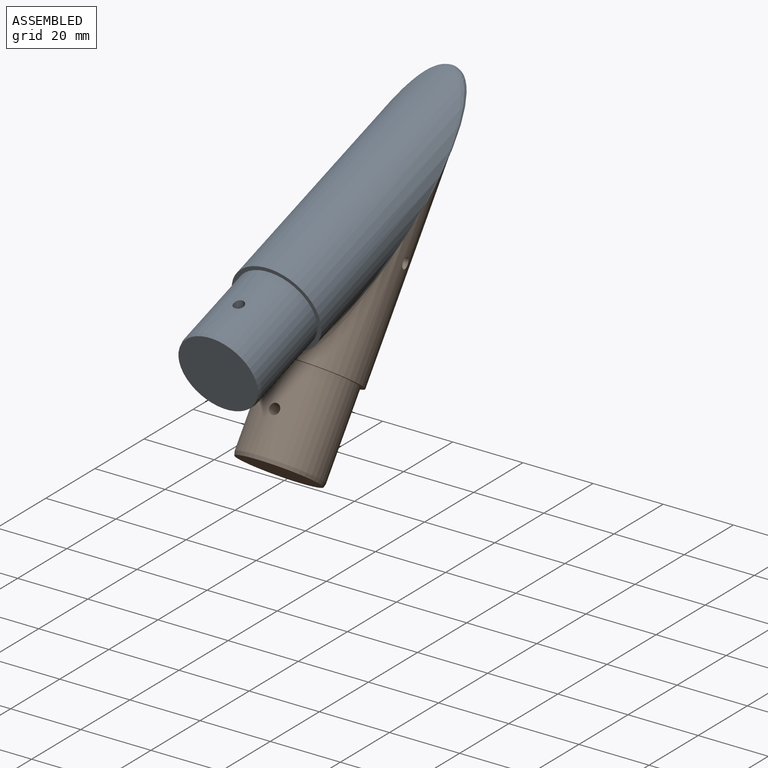
[diagram: assembled view]
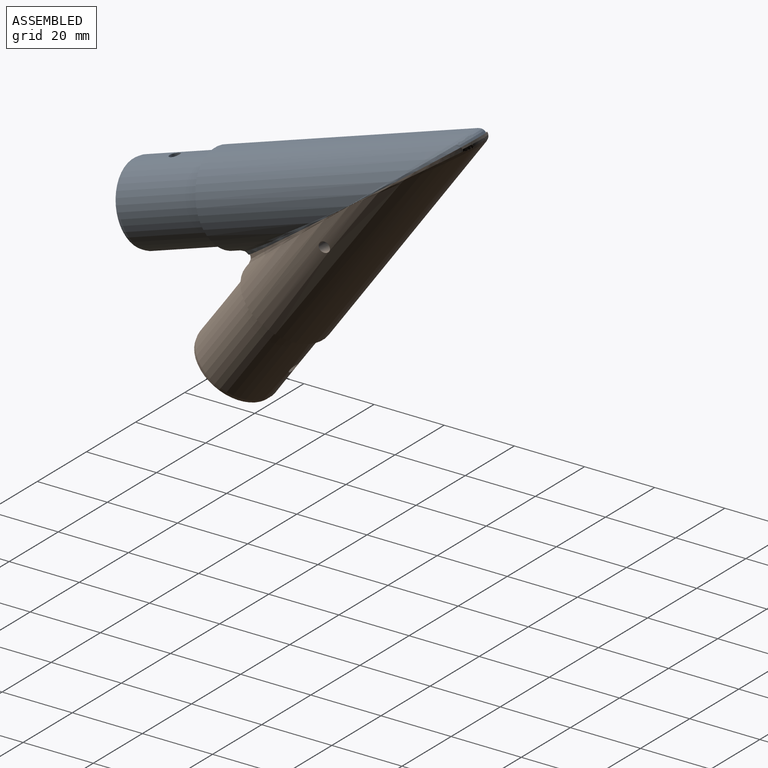
[diagram: assembled view, second angle]
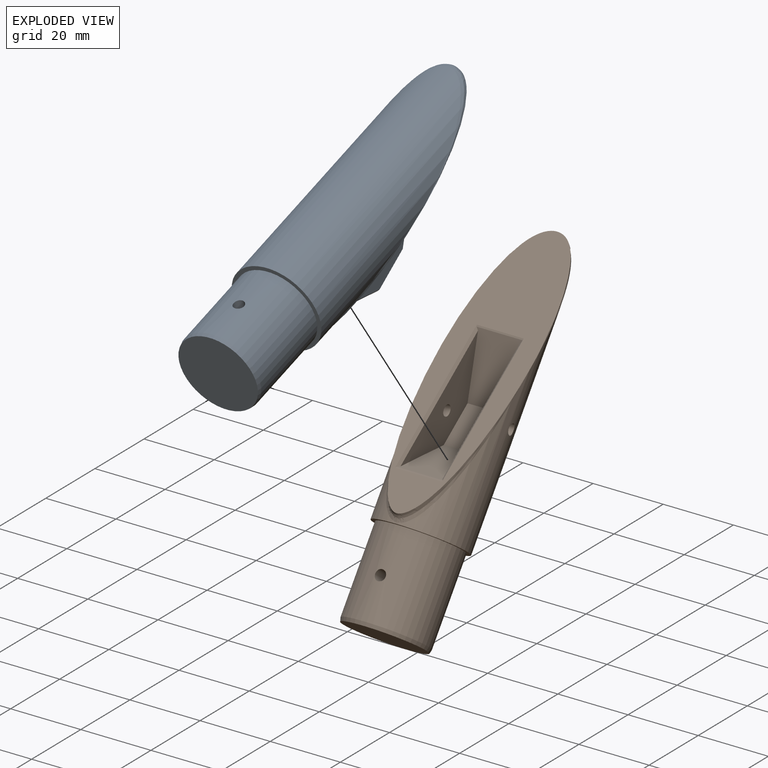
[diagram: exploded view]
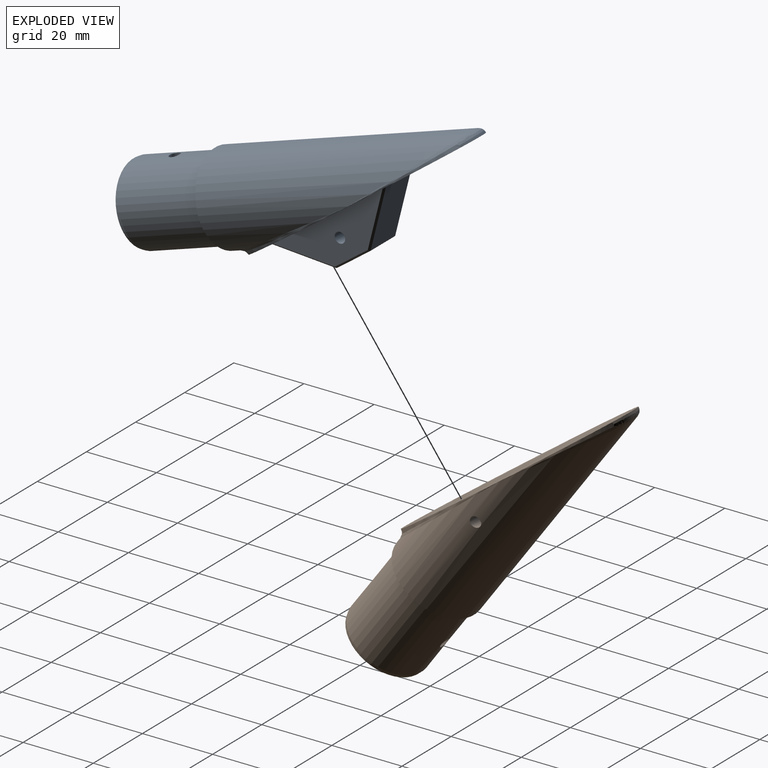
[diagram: exploded view, second angle]
ASSEMBLY  parts=2 mates=3
PART A: 27 faces, bbox 42.8x47.6x126.3 mm
  f0: bspline ~38.47x25mm, area 0mm2, adj f2,f6
  f1: bspline ~44.63x25mm, area 110.2mm2, adj f2,f6
  f2: cylinder r=12.5mm len=77.43mm, axis (0,0,-1), area 3226.5mm2, adj f0,f1,f5
  f3: cylinder r=11.35mm len=24mm, axis (0,0,-1), area 1697.3mm2, adj f5,f25,f26
  f4: plane 22.16x22.16mm, normal (0,0,-1), area 385.8mm2, adj f26
  f5: plane 25x25mm, normal (0,0,-1), area 86.2mm2, adj f2,f3
  f6: plane 94.74x42.79mm, normal (0,0.95,0.31), area 1138.6mm2, adj f0,f1,f7,f8,f10,f11,f12,f13
  f7: plane 15.68x10mm, normal (0,0.53,0.85), area 184.9mm2, adj f6,f18,f19,f23
  f8: plane 17.14x10mm, normal (0,0.93,-0.37), area 184.9mm2, adj f6,f12,f13,f14
  f9: plane 11.07x10mm, normal (0,0.95,0.31), area 116.4mm2, adj f14,f17,f20,f23
  f10: plane 37.14x18.77mm, normal (1,0,0), area 284.4mm2, adj f6,f12,f17,f18,f24
  f11: plane 37.14x18.77mm, normal (-1,0,0), area 284.4mm2, adj f6,f13,f19,f20,f24
  f12: plane 17.33x7.17mm, normal (0.71,0.66,-0.26), area 12.9mm2, adj f6,f8,f10,f15
  f13: plane 17.33x7.17mm, normal (-0.71,0.66,-0.26), area 12.9mm2, adj f6,f8,f11,f16
  f14: plane 10x0.34mm, normal (0,1,-0.03), area 3.4mm2, adj f8,f9,f15,f16
  f15: plane 0.5x0.48mm, normal (0.68,0.73,-0.03), area 0.1mm2, adj f12,f14,f17
  f16: plane 0.5x0.48mm, normal (-0.68,0.73,-0.03), area 0.1mm2, adj f13,f14,f20
  f17: plane 11.22x4.07mm, normal (0.71,0.67,0.22), area 8.2mm2, adj f9,f10,f15,f21
  f18: plane 15.68x10.22mm, normal (0.71,0.37,0.6), area 12.9mm2, adj f6,f7,f10,f21
  f19: plane 15.68x10.22mm, normal (-0.71,0.37,0.6), area 12.9mm2, adj f6,f7,f11,f22
  f20: plane 11.22x4.07mm, normal (-0.71,0.67,0.22), area 8.2mm2, adj f9,f11,f16,f22
  f21: plane 0.5x0.48mm, normal (0.68,0.57,0.45), area 0.1mm2, adj f17,f18,f23
  f22: plane 0.5x0.48mm, normal (-0.68,0.57,0.45), area 0.1mm2, adj f19,f20,f23
  f23: plane 10x0.27mm, normal (0,0.79,0.62), area 3.4mm2, adj f7,f9,f21,f22
  f24: cylinder r=1.5mm len=11mm, axis (1,0,0), area 103.7mm2, adj f10,f11
  f25: cylinder r=1.5mm len=22.7mm, axis (0,-1,0), area 213.9mm2, adj f3
  f26: cone r=11.35mm half-angle=15deg, axis (0,0,1), area 73mm2, adj f3,f4
PART B: 20 faces, bbox 42.8x46.4x126.3 mm
  f0: plane 94.74x42.79mm, normal (0,0.95,0.31), area 1034.7mm2, adj f1,f2,f16,f17,f18,f19
  f1: bspline ~38.47x25mm, area 0mm2, adj f0,f3
  f2: bspline ~44.63x25mm, area 110.2mm2, adj f0,f3
  f3: cylinder r=12.5mm len=77.43mm, axis (0,0,-1), area 3212.2mm2, adj f1,f2,f6,f12,f13
  f4: cylinder r=11.35mm len=24mm, axis (0,0,-1), area 1697.3mm2, adj f6,f14,f15
  f5: plane 22.16x22.16mm, normal (0,0,-1), area 385.8mm2, adj f15
  f6: plane 25x25mm, normal (0,0,-1), area 86.2mm2, adj f3,f4
  f7: plane 17.08x13.05mm, normal (0,0.93,-0.37), area 221.5mm2, adj f8,f10,f11,f16,f17,f19
  f8: plane 12x11.41mm, normal (0,0.95,0.31), area 144mm2, adj f7,f9,f10,f11
  f9: plane 15.62x13.05mm, normal (0,0.53,0.85), area 221.5mm2, adj f8,f10,f11,f16,f18,f19
  f10: plane 37.06x18.63mm, normal (1,0,0), area 281.2mm2, adj f7,f8,f9,f13,f16
  f11: plane 37.06x18.63mm, normal (-1,0,0), area 281.2mm2, adj f7,f8,f9,f12,f19
  f12: cylinder r=1.5mm len=6.4mm, axis (1,0,0), area 60.3mm2, adj f3,f11
  f13: cylinder r=1.5mm len=6.4mm, axis (1,0,0), area 60.3mm2, adj f3,f10
  f14: cylinder r=1.5mm len=22.7mm, axis (0,-1,0), area 213.9mm2, adj f4
  f15: cone r=11.35mm half-angle=15deg, axis (0,0,1), area 73mm2, adj f4,f5
  f16: plane 39.09x13.02mm, normal (0.71,0.67,0.22), area 38.7mm2, adj f0,f7,f9,f10,f17,f18
  f17: plane 13.37x0.47mm, normal (0,1,-0.03), area 6.2mm2, adj f0,f7,f16,f19
  f18: plane 13.37x0.37mm, normal (0,0.79,0.62), area 6.2mm2, adj f0,f9,f16,f19
  f19: plane 39.09x13.02mm, normal (-0.71,0.67,0.22), area 38.7mm2, adj f0,f7,f9,f11,f17,f18
PLACE A rot(axis=(-1,0,0),72deg) t=(0,78.83,224.23)mm
PLACE B rot(axis=(0,0.31,0.95),180deg) t=(-0.5,104.25,189.23)mm
MATE planar B.f0 <-> A.f6  axis (0,-0.59,0.81) through (-0.5,146.95,246.99)mm
MATE planar A.f10 <-> B.f10  axis (1,0,0) through (5.5,146.11,232.16)mm
MATE planar A.f7 <-> B.f7  axis (0,0.97,-0.24) through (0,148.83,241.01)mm
